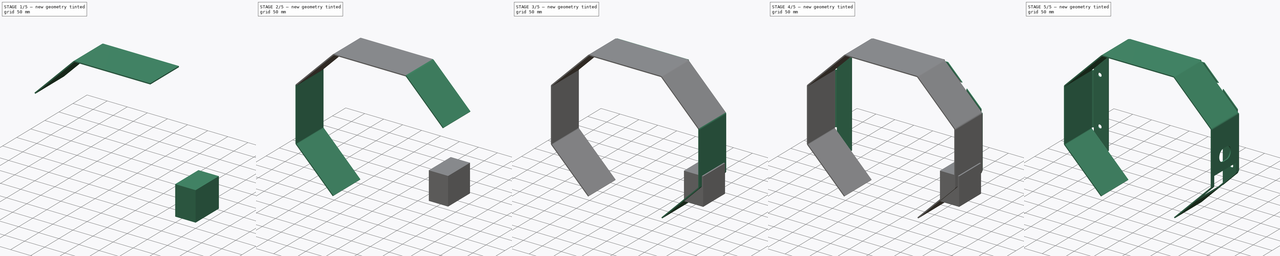
[diagram: build sequence overview — one tinted view per stage of 5, left to right]
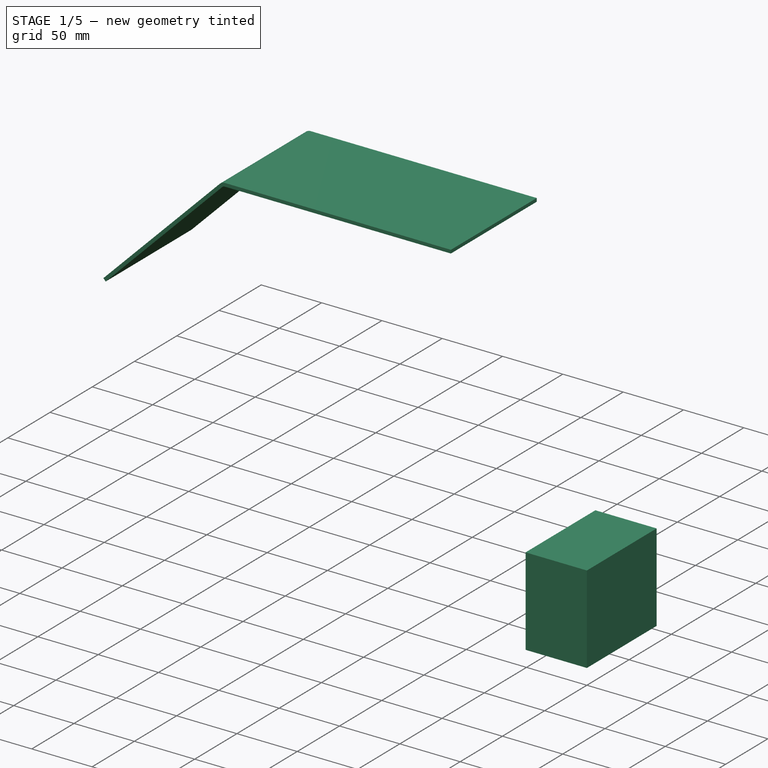
[diagram: stage 1 of 5 — iso view after this stage's code; geometry added in this stage tinted green]
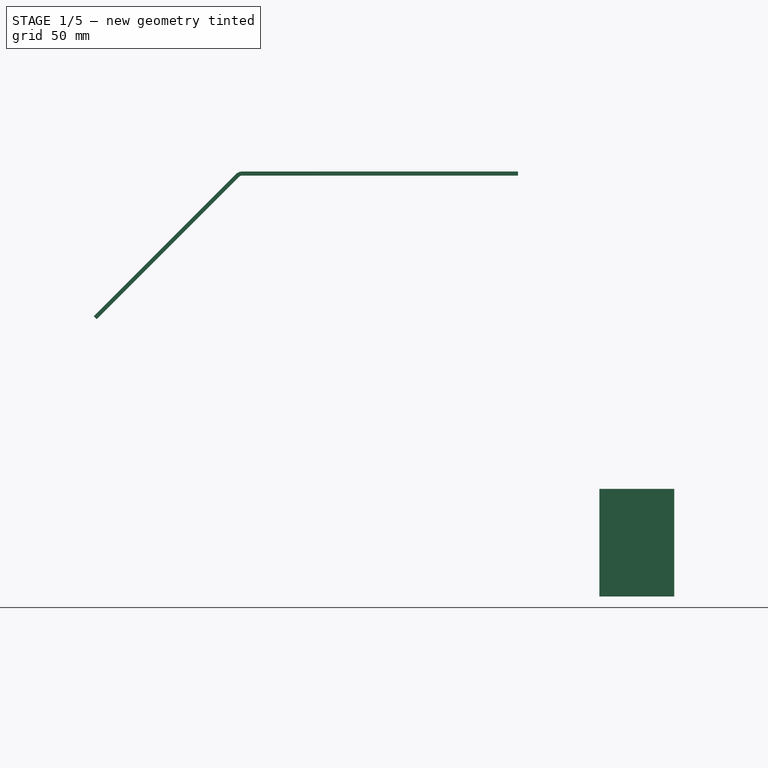
[diagram: stage 1 of 5 — front view after this stage's code; geometry added in this stage tinted green]
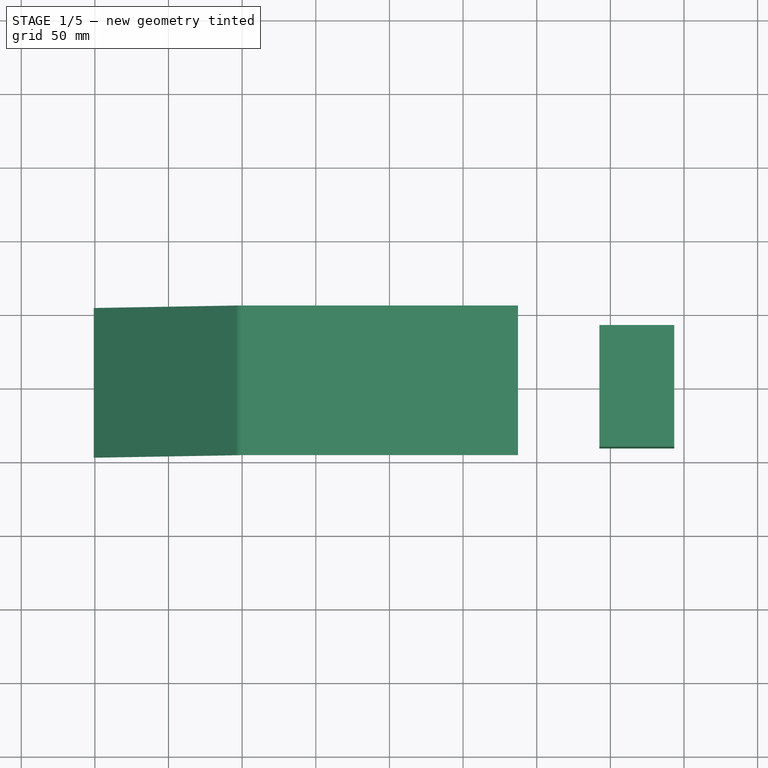
[diagram: stage 1 of 5 — top view after this stage's code; geometry added in this stage tinted green]
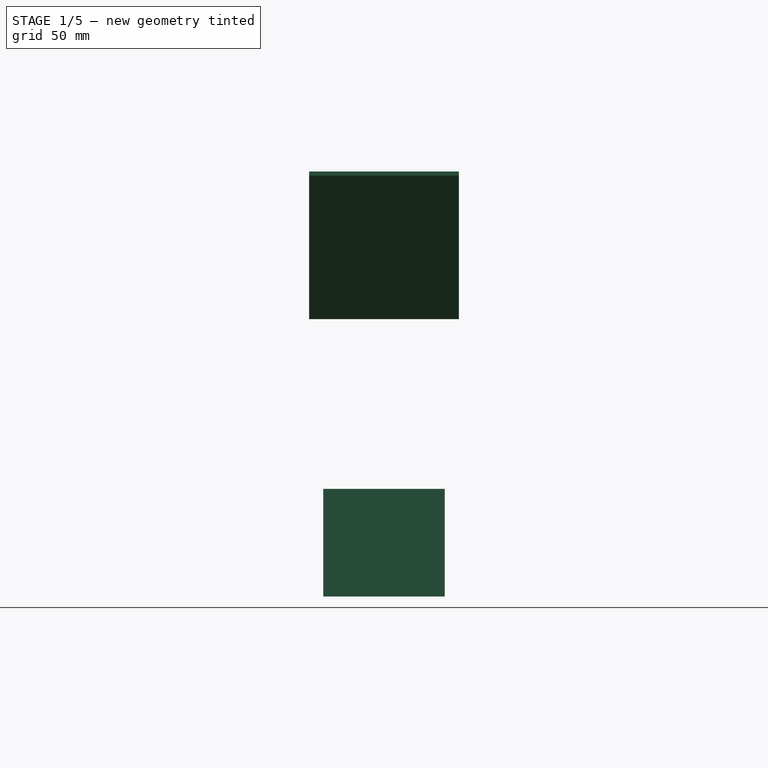
[diagram: stage 1 of 5 — right view after this stage's code; geometry added in this stage tinted green]
FCSTD DOCUMENT  (FreeCAD 0.16R6703 (Git))
Label: AA-JRDx1
License: All rights reserved
LicenseURL: http://en.wikipedia.org/wiki/All_rights_reserved
objects: Part::FeaturePython×9, Sketcher::SketchObject×6, PartDesign::Pad×2, PartDesign::Pocket×2, Part::Box×1, Part::Cut×1
note: 25 computed .brp shape members not serialized (recipe doc carries the construction recipe); baked Part::Feature solids carry a one-line shape summary decoded from their .brp

FEATURE [Sketcher::SketchObject] Sketch
  Placement = pos=(0,0,0) rot=(1,0,0;1.5708rad)
  sketch-geometry (22):
    g0: LineSegment StartX=0 StartY=0 StartZ=0 EndX=-66.4615 EndY=68.4119 EndZ=0
    g1: LineSegment StartX=-66.4615 StartY=68.4119 StartZ=0 EndX=-66.4615 EndY=199.964 EndZ=0
    g2: LineSegment StartX=-66.4615 StartY=199.964 StartZ=0 EndX=7.19213 EndY=269.62 EndZ=0
    g3: LineSegment StartX=7.19213 StartY=269.62 StartZ=0 EndX=182.54 EndY=269.62 EndZ=0
    g4: LineSegment StartX=182.54 StartY=269.62 StartZ=0 EndX=275.442 EndY=199.964 EndZ=0
    g5: LineSegment StartX=275.442 StartY=199.964 StartZ=0 EndX=275.442 EndY=68.4125 EndZ=0
    g6: LineSegment StartX=275.442 StartY=68.4125 StartZ=0 EndX=187.332 EndY=0 EndZ=0
    g7: LineSegment StartX=187.332 StartY=0 StartZ=0 EndX=185.65 EndY=2.21148 EndZ=0
    g8: LineSegment StartX=185.65 StartY=2.21148 StartZ=0 EndX=272.663 EndY=68.4125 EndZ=0
    g9: LineSegment StartX=272.663 StartY=68.4125 StartZ=0 EndX=272.663 EndY=199.964 EndZ=0
    g10: LineSegment StartX=272.663 StartY=199.964 StartZ=0 EndX=182.54 EndY=266.841 EndZ=0
    g11: LineSegment StartX=182.54 StartY=266.841 StartZ=0 EndX=7.19213 EndY=266.841 EndZ=0
    g12: LineSegment StartX=7.19213 StartY=266.841 StartZ=0 EndX=-63.6828 EndY=199.964 EndZ=0
    g13: LineSegment StartX=-63.6828 StartY=199.964 StartZ=0 EndX=-63.6828 EndY=68.4119 EndZ=0
    g14: LineSegment StartX=-63.6828 StartY=68.4119 StartZ=0 EndX=1.97673 EndY=1.95295 EndZ=0
    g15: LineSegment StartX=1.97673 StartY=1.95295 StartZ=0 EndX=0 EndY=0 EndZ=0
    g16: LineSegment [constr] StartX=-66.4615 StartY=68.4119 StartZ=0 EndX=-63.6828 EndY=68.4119 EndZ=0
    g17: LineSegment [constr] StartX=-66.4615 StartY=199.964 StartZ=0 EndX=-63.6828 EndY=199.964 EndZ=0
    g18: LineSegment [constr] StartX=7.19213 StartY=269.62 StartZ=0 EndX=7.19213 EndY=266.841 EndZ=0
    g19: LineSegment [constr] StartX=182.54 StartY=269.62 StartZ=0 EndX=182.54 EndY=266.841 EndZ=0
    g20: LineSegment [constr] StartX=275.442 StartY=199.964 StartZ=0 EndX=272.663 EndY=199.964 EndZ=0
    g21: LineSegment [constr] StartX=275.442 StartY=68.4125 StartZ=0 EndX=272.663 EndY=68.4125 EndZ=0
  constraints (51):
    c: Coincident(g-1,g0)
    c: Coincident(g0,g1)
    c: Vertical(g1)
    c: Coincident(g1,g2)
    c: Coincident(g2,g3)
    c: Horizontal(g3)
    c: Coincident(g3,g4)
    c: PointOnObject(g6,g-1)
    c: Coincident(g6,g7)
    c: Coincident(g7,g8)
    c: Coincident(g8,g9)
    c: Vertical(g9)
    c: Coincident(g9,g10)
    c: Coincident(g10,g11)
    c: Horizontal(g11)
    c: Coincident(g11,g12)
    c: Coincident(g12,g13)
    c: Vertical(g13)
    c: Coincident(g13,g14)
    c: Coincident(g14,g15)
    c: Coincident(g15,g0)
    c: Vertical(g5)
    c: Perpendicular(g15,g14)
    c: Perpendicular(g8,g7)
    c: Distance(g15) = 2.77876
    c: Coincident(g16,g0)
    c: Coincident(g16,g13)
    c: Horizontal(g16)
    c: Coincident(g17,g1)
    c: Coincident(g17,g12)
    c: Horizontal(g17)
    c: Coincident(g18,g2)
    c: Coincident(g18,g11)
    c: Vertical(g18)
    c: Coincident(g19,g3)
    c: Coincident(g19,g10)
    c: Vertical(g19)
    c: Coincident(g20,g4)
    c: Coincident(g20,g9)
    c: Horizontal(g20)
    c: Coincident(g21,g5)
    c: Coincident(g21,g8)
    c: Horizontal(g21)
    c: Coincident(g6,g5)
    c: Equal(g7,g21)
    c: Equal(g21,g20)
    c: Equal(g20,g19)
    c: Equal(g19,g18)
    c: Equal(g18,g17)
    c: Equal(g17,g16)
    c: Equal(g16,g15)
FEATURE [Sketcher::SketchObject] Sketch001
  sketch-geometry (4):
    g0: LineSegment StartX=0 StartY=0 StartZ=0 EndX=187.325 EndY=0 EndZ=0
    g1: LineSegment StartX=187.325 StartY=0 StartZ=0 EndX=187.325 EndY=101.6 EndZ=0
    g2: LineSegment StartX=187.325 StartY=101.6 StartZ=0 EndX=0 EndY=101.6 EndZ=0
    g3: LineSegment StartX=0 StartY=101.6 StartZ=0 EndX=0 EndY=0 EndZ=0
  constraints (11):
    c: Coincident(g-1,g0)
    c: Horizontal(g0)
    c: Coincident(g0,g1)
    c: Vertical(g1)
    c: Coincident(g1,g2)
    c: Horizontal(g2)
    c: Coincident(g2,g3)
    c: Coincident(g3,g0)
    c: Vertical(g3)
    c: DistanceY(g1,g1) = 101.6
    c: DistanceX(g2,g2) = 187.325
FEATURE [PartDesign::Pad] Pad
  Length = 2.77876
  Length2 = 100
  Sketch = -> Sketch001
  Type = 0
FEATURE [Part::FeaturePython] Bend  # WARN: FeaturePython — macro-defined, semantics opaque (R4)
  angle = 45
  baseObject = -> Pad [Face4]
  gap1 = 0
  gap2 = 0
  invert = true
  length = 136.525
  radius = 3.175
  reliefd = 1
  reliefw = 0.5
FEATURE [Part::Box] Box  label="Cube"
  Height = 73.025
  Length = 50.8
  Placement = pos=(242.57,9.525,-285.75) rot=(0,0,1;0rad)
  Width = 82.55
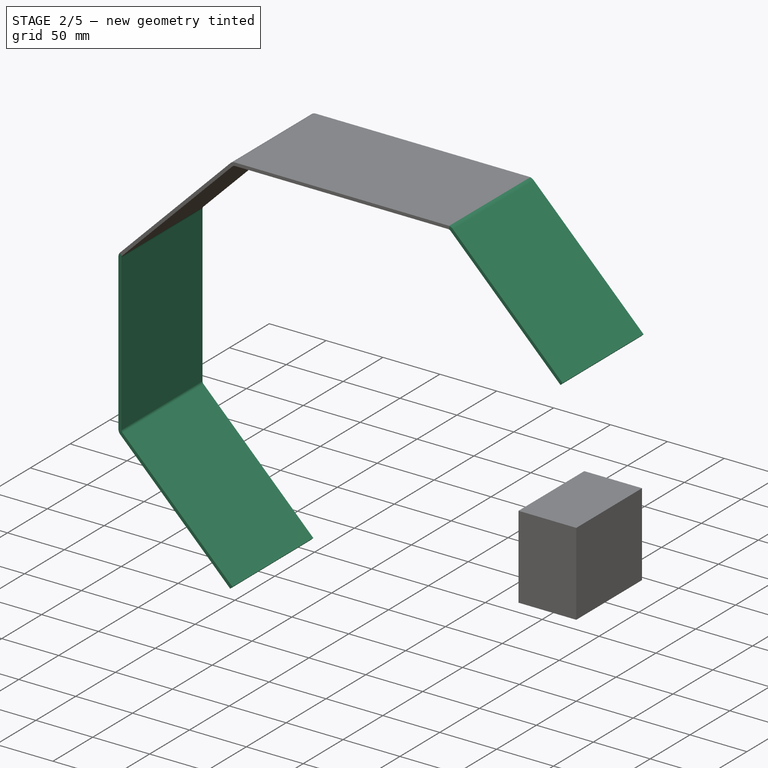
[diagram: stage 2 of 5 — iso view after this stage's code; geometry added in this stage tinted green]
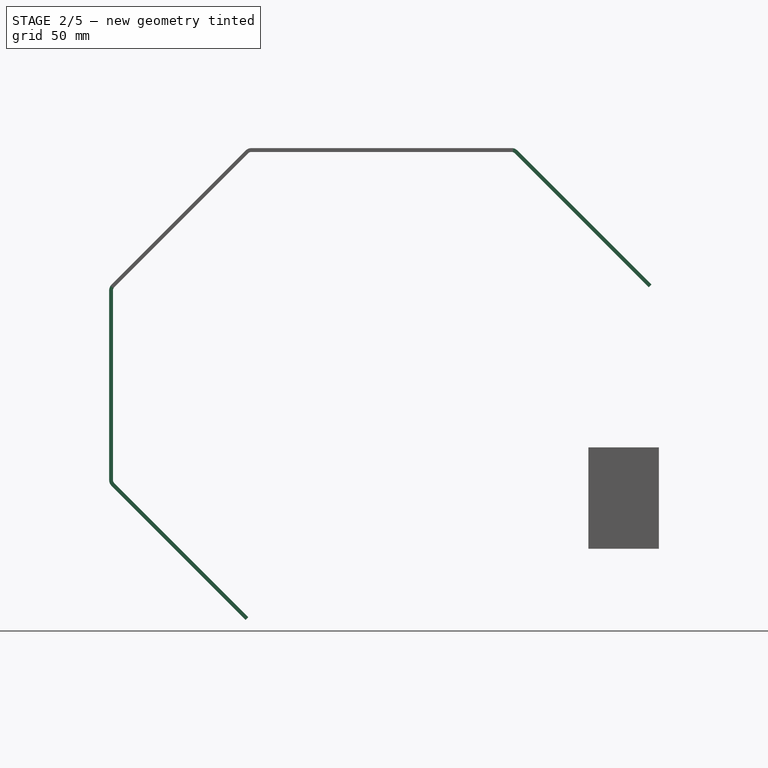
[diagram: stage 2 of 5 — front view after this stage's code; geometry added in this stage tinted green]
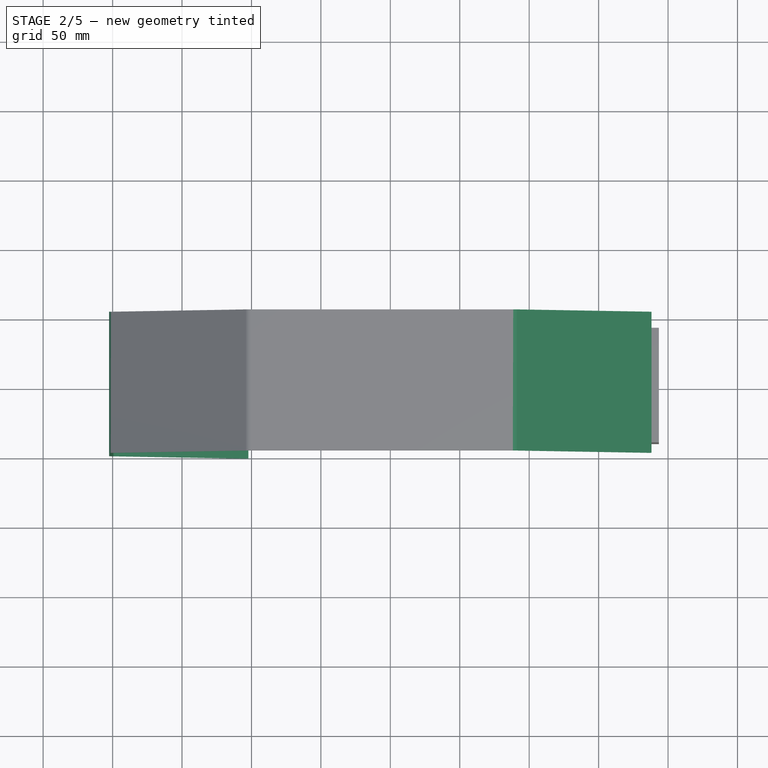
[diagram: stage 2 of 5 — top view after this stage's code; geometry added in this stage tinted green]
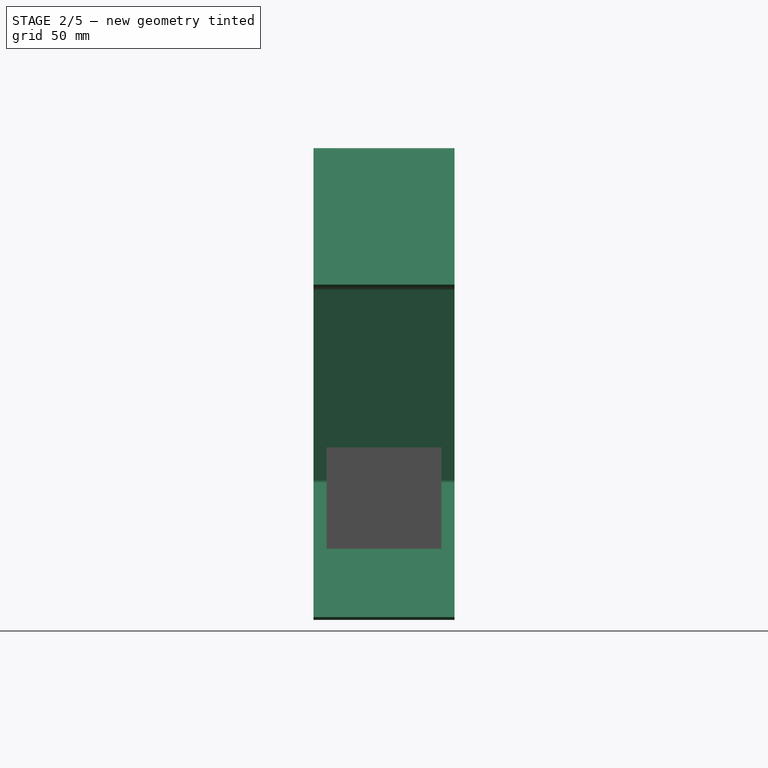
[diagram: stage 2 of 5 — right view after this stage's code; geometry added in this stage tinted green]
FEATURE [Part::FeaturePython] Bend001  # WARN: FeaturePython — macro-defined, semantics opaque (R4)
  angle = 45
  baseObject = -> Bend [Face1]
  gap1 = 0
  gap2 = 0
  invert = true
  length = 136.525
  radius = 3.175
  reliefd = 1
  reliefw = 0.5
FEATURE [Part::FeaturePython] Bend002  # WARN: FeaturePython — macro-defined, semantics opaque (R4)
  angle = 45
  baseObject = -> Bend001 [Face1]
  gap1 = 0
  gap2 = 0
  invert = true
  length = 136.525
  radius = 3.175
  reliefd = 1
  reliefw = 0.5
FEATURE [Part::FeaturePython] Bend003  # WARN: FeaturePython — macro-defined, semantics opaque (R4)
  angle = 45
  baseObject = -> Bend002 [Face30]
  gap1 = 0
  gap2 = 0
  invert = true
  length = 136.525
  radius = 3.175
  reliefd = 1
  reliefw = 0.5
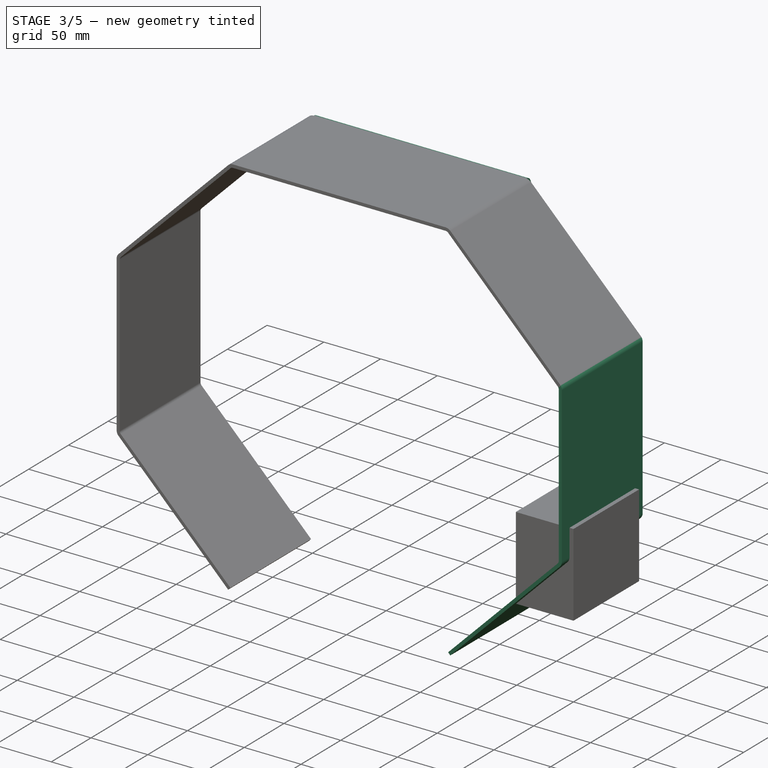
[diagram: stage 3 of 5 — iso view after this stage's code; geometry added in this stage tinted green]
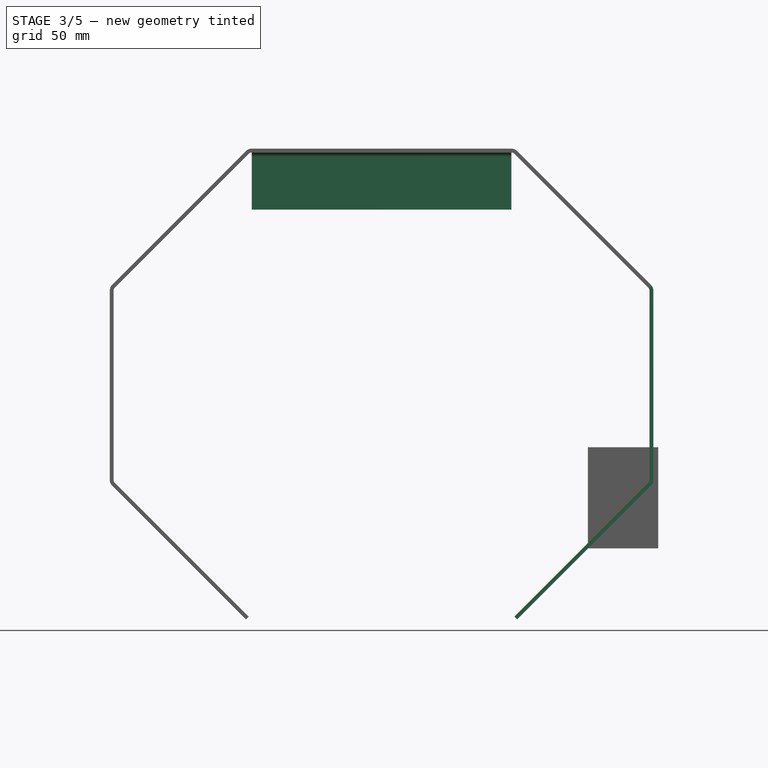
[diagram: stage 3 of 5 — front view after this stage's code; geometry added in this stage tinted green]
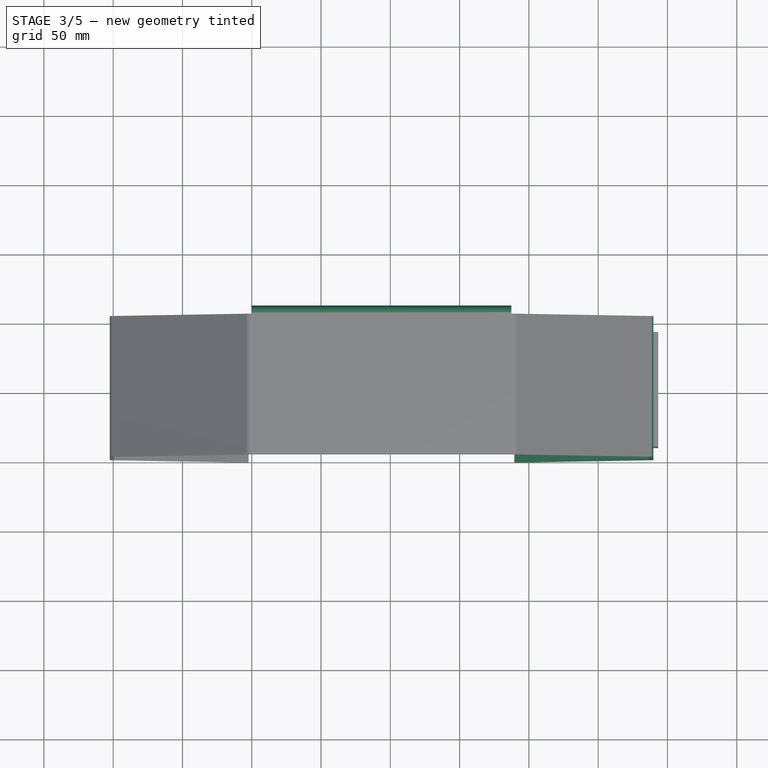
[diagram: stage 3 of 5 — top view after this stage's code; geometry added in this stage tinted green]
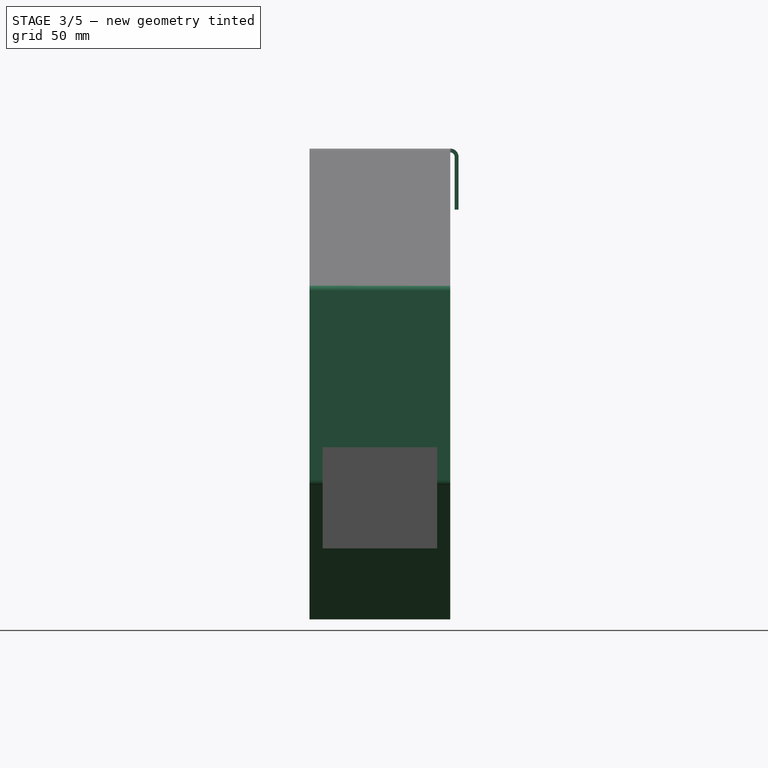
[diagram: stage 3 of 5 — right view after this stage's code; geometry added in this stage tinted green]
FEATURE [Part::FeaturePython] Bend004  # WARN: FeaturePython — macro-defined, semantics opaque (R4)
  angle = 45
  baseObject = -> Bend003 [Face1]
  gap1 = 0
  gap2 = 0
  invert = true
  length = 136.525
  radius = 3.175
  reliefd = 1
  reliefw = 0.5
FEATURE [Part::FeaturePython] Bend005  # WARN: FeaturePython — macro-defined, semantics opaque (R4)
  angle = 45
  baseObject = -> Bend004 [Face1]
  gap1 = 0
  gap2 = 0
  invert = true
  length = 136.525
  radius = 3.175
  reliefd = 1
  reliefw = 0.5
FEATURE [Part::FeaturePython] Bend006  # WARN: FeaturePython — macro-defined, semantics opaque (R4)
  angle = 90
  baseObject = -> Bend005 [Face27]
  gap1 = 0
  gap2 = 0
  invert = true
  length = 38.1
  radius = 3.175
  reliefd = 1
  reliefw = 0.5
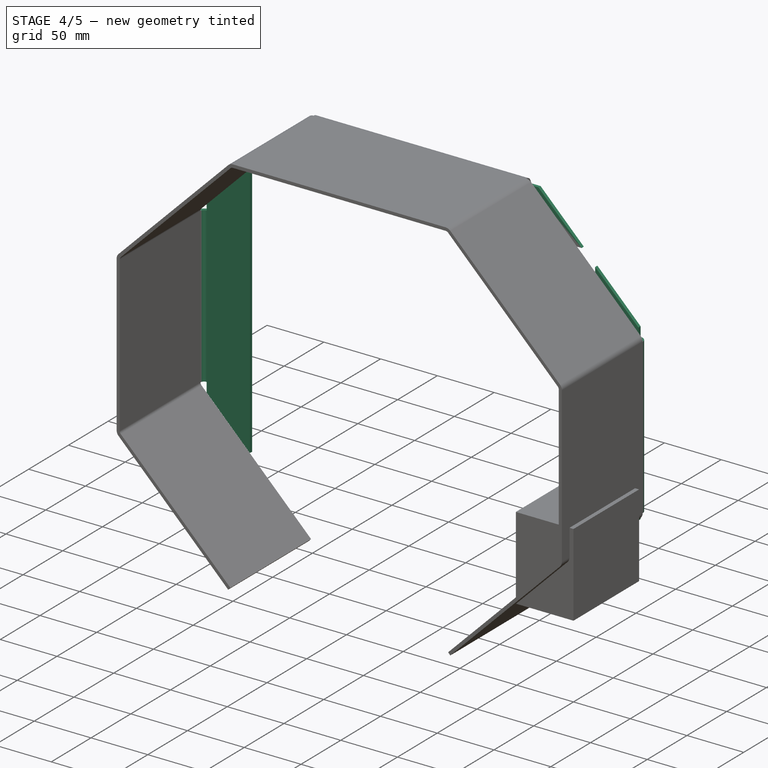
[diagram: stage 4 of 5 — iso view after this stage's code; geometry added in this stage tinted green]
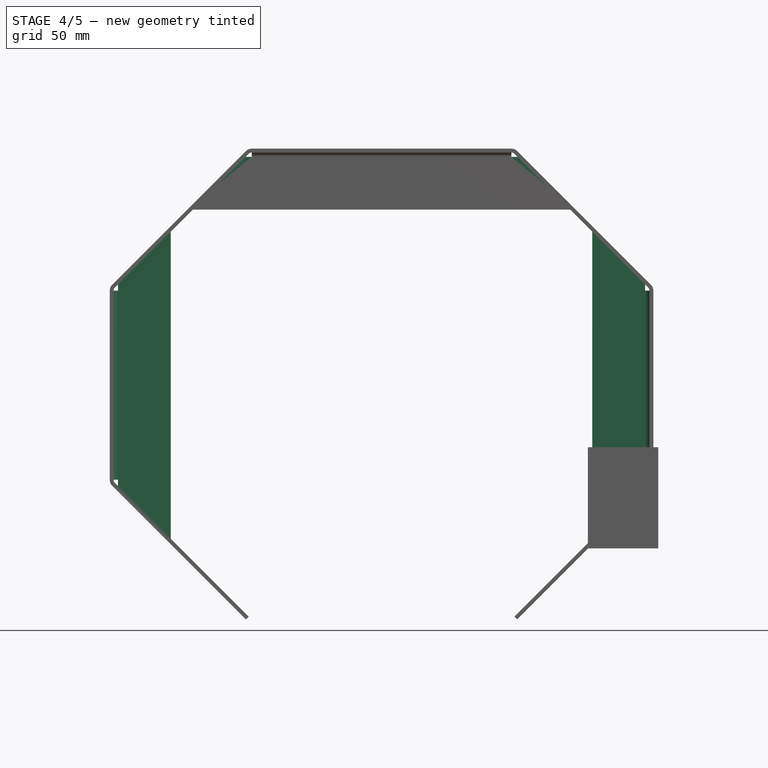
[diagram: stage 4 of 5 — front view after this stage's code; geometry added in this stage tinted green]
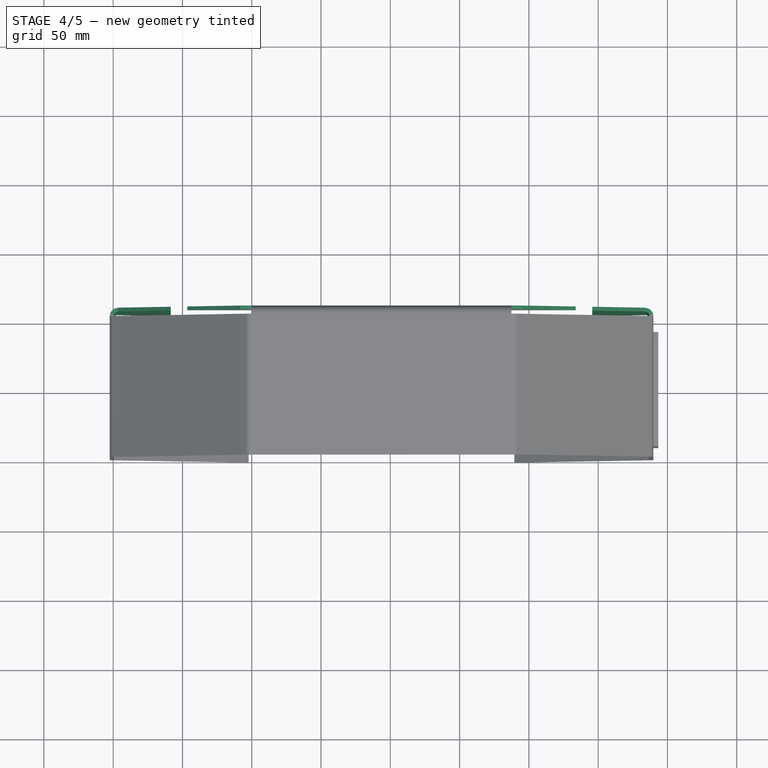
[diagram: stage 4 of 5 — top view after this stage's code; geometry added in this stage tinted green]
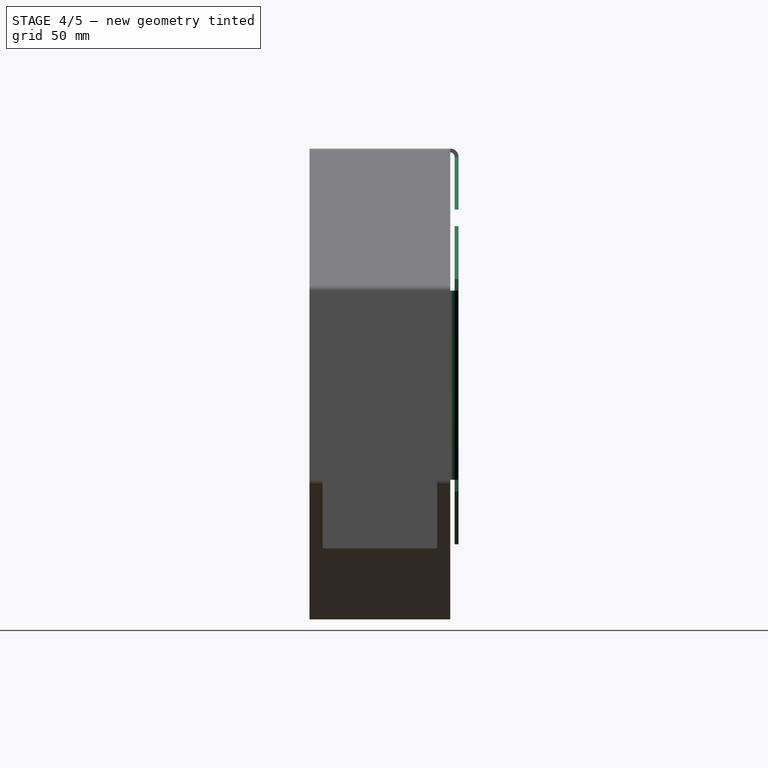
[diagram: stage 4 of 5 — right view after this stage's code; geometry added in this stage tinted green]
FEATURE [Part::FeaturePython] Bend007  # WARN: FeaturePython — macro-defined, semantics opaque (R4)
  angle = 90
  baseObject = -> Bend006 [Face31]
  gap1 = 0
  gap2 = 0
  invert = true
  length = 38.1
  radius = 3.175
  reliefd = 1
  reliefw = 0.5
FEATURE [Part::FeaturePython] Bend008  # WARN: FeaturePython — macro-defined, semantics opaque (R4)
  angle = 90
  baseObject = -> Bend007 [Face61]
  gap1 = 0
  gap2 = 0
  invert = true
  length = 38.1
  radius = 3.175
  reliefd = 1
  reliefw = 0.5
FEATURE [Sketcher::SketchObject] Sketch002
  ExternalGeometry = -> [Bend008]
  Placement = pos=(0,107.554,0) rot=(0,0.707107,0.707107;3.14159rad)
  Support = -> Bend008 [Face45]
  sketch-geometry (24):
    g0: LineSegment StartX=-187.325 StartY=-3.175 StartZ=0 EndX=-195.745 EndY=-3.175 EndZ=0
    g1: LineSegment StartX=-195.745 StartY=-3.175 StartZ=0 EndX=-233.845 EndY=-41.275 EndZ=0
    g2: LineSegment StartX=-233.845 StartY=-41.275 StartZ=0 EndX=-187.325 EndY=-41.275 EndZ=0
    g3: LineSegment StartX=-187.325 StartY=-41.275 StartZ=0 EndX=-187.325 EndY=-3.175 EndZ=0
    g4: LineSegment StartX=0 StartY=-3.175 StartZ=0 EndX=8.41989 EndY=-3.175 EndZ=0
    g5: LineSegment StartX=8.41989 StartY=-3.175 StartZ=0 EndX=46.5199 EndY=-41.275 EndZ=0
    g6: LineSegment StartX=46.5199 StartY=-41.275 StartZ=0 EndX=0 EndY=-41.275 EndZ=0
    g7: LineSegment StartX=0 StartY=-41.275 StartZ=0 EndX=0 EndY=-3.175 EndZ=0
    g8: LineSegment StartX=58.4378 StartY=-99.7128 StartZ=0 EndX=58.4378 EndY=-53.1929 EndZ=0
    g9: LineSegment StartX=58.4378 StartY=-53.1929 StartZ=0 EndX=96.5378 EndY=-91.2929 EndZ=0
    g10: LineSegment StartX=96.5378 StartY=-91.2929 StartZ=0 EndX=96.5378 EndY=-99.7128 EndZ=0
    g11: LineSegment StartX=96.5378 StartY=-99.7128 StartZ=0 EndX=58.4378 EndY=-99.7128 EndZ=0
    g12: LineSegment StartX=96.5378 StartY=-236.238 StartZ=0 EndX=96.5378 EndY=-244.658 EndZ=0
    g13: LineSegment StartX=96.5378 StartY=-244.658 StartZ=0 EndX=58.4378 EndY=-282.758 EndZ=0
    g14: LineSegment StartX=58.4378 StartY=-282.758 StartZ=0 EndX=58.4378 EndY=-236.238 EndZ=0
    g15: LineSegment StartX=58.4378 StartY=-236.238 StartZ=0 EndX=96.5378 EndY=-236.238 EndZ=0
    g16: LineSegment StartX=-283.863 StartY=-236.238 StartZ=0 EndX=-283.863 EndY=-244.658 EndZ=0
    g17: LineSegment StartX=-283.863 StartY=-244.658 StartZ=0 EndX=-245.763 EndY=-282.758 EndZ=0
    g18: LineSegment StartX=-245.763 StartY=-282.758 StartZ=0 EndX=-245.763 EndY=-236.238 EndZ=0
    g19: LineSegment StartX=-245.763 StartY=-236.238 StartZ=0 EndX=-283.863 EndY=-236.238 EndZ=0
    g20: LineSegment StartX=-283.863 StartY=-99.7128 StartZ=0 EndX=-283.863 EndY=-91.2929 EndZ=0
    g21: LineSegment StartX=-283.863 StartY=-91.2929 StartZ=0 EndX=-245.763 EndY=-53.1929 EndZ=0
    g22: LineSegment StartX=-245.763 StartY=-53.1929 StartZ=0 EndX=-245.763 EndY=-99.7128 EndZ=0
    g23: LineSegment StartX=-245.763 StartY=-99.7128 StartZ=0 EndX=-283.863 EndY=-99.7128 EndZ=0
  constraints (64):
    c: Coincident(g0,g1)
    c: Coincident(g1,g2)
    c: Horizontal(g2)
    c: Coincident(g2,g3)
    c: Coincident(g3,g0)
    c: Vertical(g3)
    c: Horizontal(g0)
    c: Horizontal(g4)
    c: Coincident(g4,g5)
    c: Coincident(g5,g6)
    c: Horizontal(g6)
    c: Coincident(g6,g7)
    c: Coincident(g4,g7)
    c: Coincident(g4,g-5)
    c: PointOnObject(g4,g-6)
    c: PointOnObject(g5,g-6)
    c: Coincident(g6,g-5)
    c: Coincident(g-4,g0)
    c: PointOnObject(g0,g-3)
    c: Coincident(g2,g-4)
    c: PointOnObject(g1,g-3)
    c: Vertical(g8)
    c: Coincident(g8,g9)
    c: Coincident(g9,g10)
    c: Coincident(g10,g11)
    c: Coincident(g11,g8)
    c: Horizontal(g11)
    c: Vertical(g12)
    c: Coincident(g12,g13)
    c: Coincident(g13,g14)
    c: Vertical(g14)
    c: Coincident(g14,g15)
    c: Coincident(g15,g12)
    c: Horizontal(g15)
    c: Vertical(g16)
    c: Coincident(g16,g17)
    c: Coincident(g17,g18)
    c: Vertical(g18)
    c: Coincident(g18,g19)
    c: Coincident(g19,g16)
    c: Vertical(g20)
    c: Coincident(g20,g21)
    c: Coincident(g21,g22)
    c: Coincident(g22,g23)
    c: Coincident(g23,g20)
    c: Horizontal(g23)
    c: Coincident(g20,g-7)
    c: Coincident(g22,g-7)
    c: PointOnObject(g21,g-3)
    c: Vertical(g22)
    c: PointOnObject(g20,g-3)
    c: Coincident(g8,g-10)
    c: Coincident(g10,g-10)
    c: PointOnObject(g9,g-6)
    c: Vertical(g10)
    c: PointOnObject(g8,g-6)
    c: Coincident(g14,g-11)
    c: Coincident(g12,g-11)
    c: PointOnObject(g12,g-12)
    c: PointOnObject(g13,g-12)
    c: Coincident(g18,g-8)
    c: Coincident(g16,g-8)
    c: PointOnObject(g16,g-9)
    c: PointOnObject(g17,g-9)
FEATURE [PartDesign::Pad] Pad001
  Length = 2.77876
  Length2 = 100
  Reversed = true
  Sketch = -> Sketch002
  Type = 0
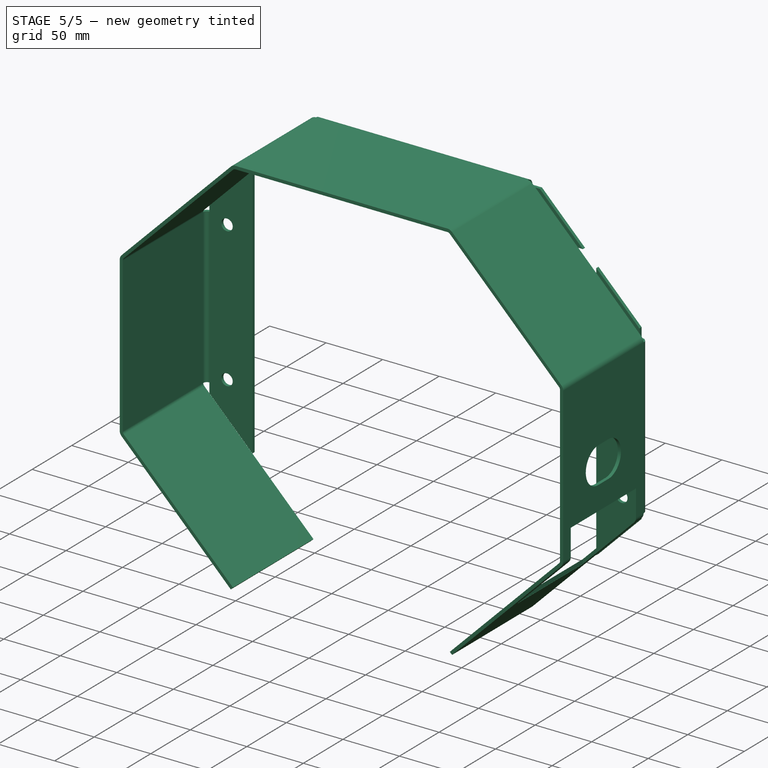
[diagram: stage 5 of 5 — iso view after this stage's code; geometry added in this stage tinted green]
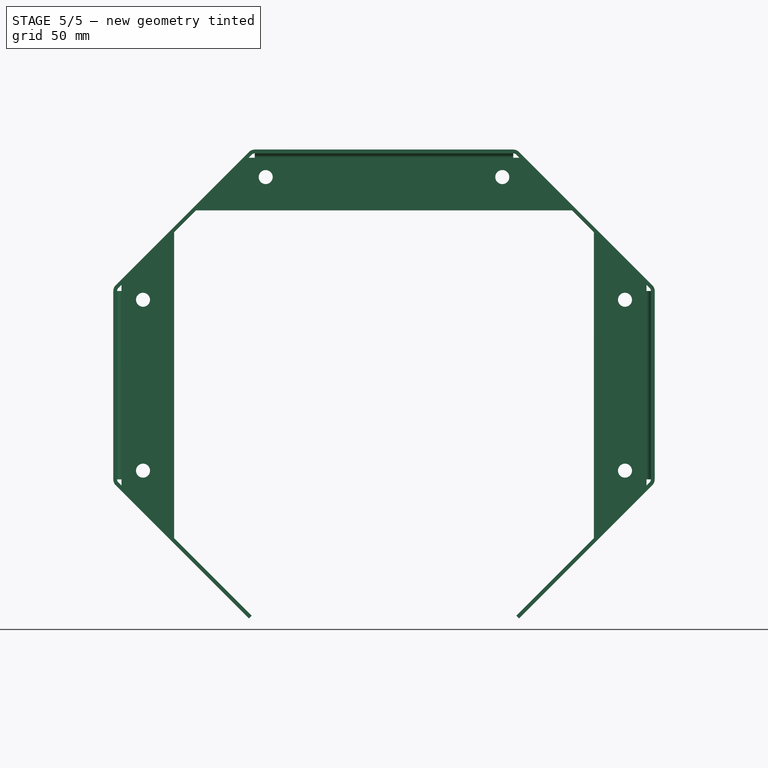
[diagram: stage 5 of 5 — front view after this stage's code; geometry added in this stage tinted green]
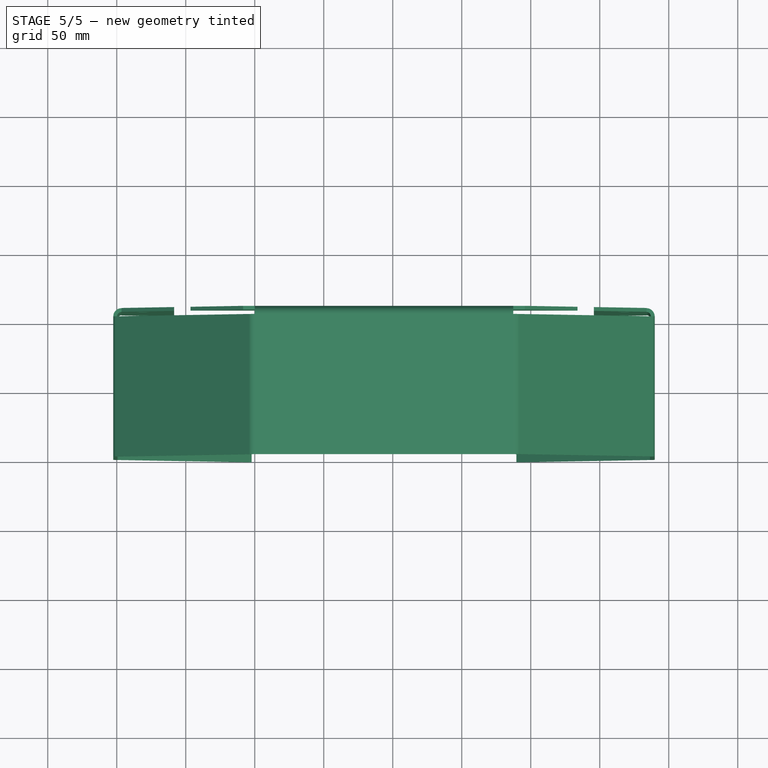
[diagram: stage 5 of 5 — top view after this stage's code; geometry added in this stage tinted green]
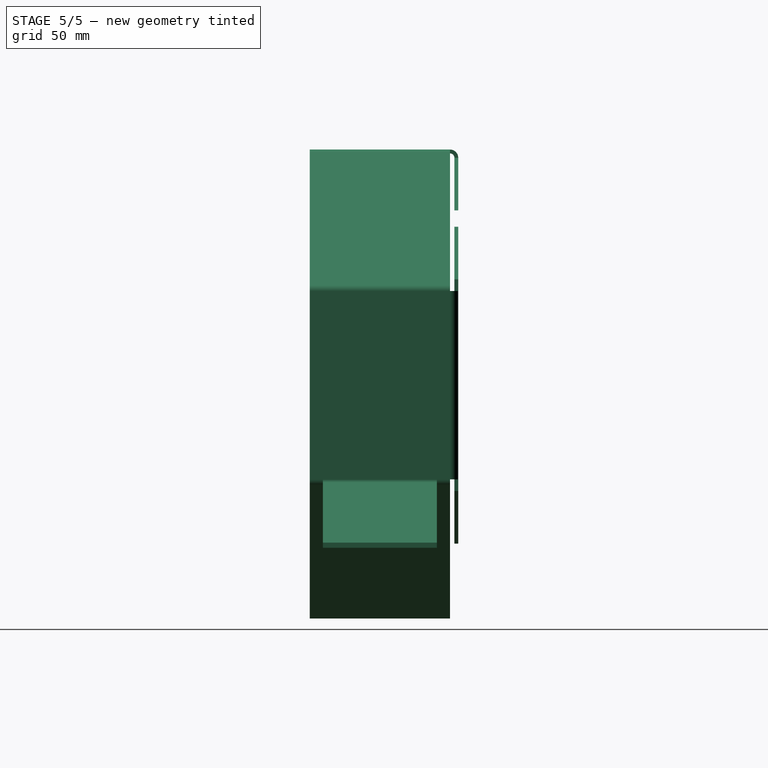
[diagram: stage 5 of 5 — right view after this stage's code; geometry added in this stage tinted green]
FEATURE [Sketcher::SketchObject] Sketch003
  ExternalGeometry = -> [Pad001]
  Placement = pos=(289.817,0,0) rot=(0.57735,0.57735,0.57735;2.0944rad)
  Support = -> Pad001 [Face42]
  sketch-geometry (11):
    g0: LineSegment [constr] StartX=101.6 StartY=-236.238 StartZ=0 EndX=101.6 EndY=-160.038 EndZ=0
    g1: LineSegment [constr] StartX=101.6 StartY=-160.038 StartZ=0 EndX=57.15 EndY=-160.038 EndZ=0
    g2: LineSegment [constr] StartX=57.15 StartY=-160.038 StartZ=0 EndX=44.45 EndY=-160.038 EndZ=0
    g3: LineSegment [constr] StartX=44.45 StartY=-160.038 StartZ=0 EndX=44.45 EndY=-175.913 EndZ=0
    g4: LineSegment [constr] StartX=57.15 StartY=-160.038 StartZ=0 EndX=57.15 EndY=-175.913 EndZ=0
    g5: LineSegment [constr] StartX=44.45 StartY=-175.913 StartZ=0 EndX=44.45 EndY=-191.788 EndZ=0
    g6: LineSegment [constr] StartX=57.15 StartY=-175.913 StartZ=0 EndX=57.15 EndY=-191.788 EndZ=0
    g7: ArcOfCircle CenterX=44.45 CenterY=-175.913 CenterZ=0 NormalX=0 NormalY=0 NormalZ=1 Radius=15.875 StartAngle=1.5708 EndAngle=4.71239
    g8: ArcOfCircle CenterX=57.15 CenterY=-175.913 CenterZ=0 NormalX=0 NormalY=0 NormalZ=1 Radius=15.875 StartAngle=4.71239 EndAngle=7.85398
    g9: LineSegment StartX=44.45 StartY=-160.038 StartZ=0 EndX=57.15 EndY=-160.038 EndZ=0
    g10: LineSegment StartX=44.45 StartY=-191.788 StartZ=0 EndX=57.15 EndY=-191.788 EndZ=0
  constraints (33):
    c: PointOnObject(g0,g-4)
    c: Vertical(g0)
    c: DistanceY(g0,g0) = 76.2
    c: PointOnObject(g0,g-3)
    c: Coincident(g1,g0)
    c: Horizontal(g1)
    c: DistanceX(g1,g1) = 44.45
    c: Coincident(g2,g1)
    c: Horizontal(g2)
    c: DistanceX(g2,g2) = 12.7
    c: Coincident(g3,g2)
    c: Vertical(g3)
    c: Coincident(g4,g1)
    c: Vertical(g4)
    c: DistanceY(g3,g3) = 15.875
    c: Equal(g4,g3)
    c: Coincident(g5,g3)
    c: Vertical(g5)
    c: Equal(g5,g3)
    c: Coincident(g6,g4)
    c: Vertical(g6)
    c: Equal(g5,g6)
    c: Coincident(g7,g3)
    c: Coincident(g7,g2)
    c: Coincident(g7,g5)
    c: Coincident(g8,g4)
    c: Coincident(g8,g1)
    c: Coincident(g8,g6)
    c: Coincident(g9,g2)
    c: Coincident(g9,g1)
    c: Coincident(g10,g5)
    c: Coincident(g10,g6)
    c: Horizontal(g10)
FEATURE [PartDesign::Pocket] Pocket
  Length = 4.99999
  Sketch = -> Sketch003
  Type = 2
FEATURE [Sketcher::SketchObject] Sketch004
  Placement = pos=(0,-50.8,0) rot=(-1,0,0;4.71239rad)
FEATURE [Part::Cut] Cut
  Base = -> Pocket
  Tool = -> Box
FEATURE [Sketcher::SketchObject] Sketch005
  ExternalGeometry = -> [Cut]
  Placement = pos=(0,104.775,0) rot=(1,0,0;1.5708rad)
  Support = -> Cut [Face7]
  sketch-geometry (22):
    g0: LineSegment [constr] StartX=-80.9625 StartY=-106.063 StartZ=0 EndX=268.288 EndY=-106.063 EndZ=0
    g1: LineSegment [constr] StartX=268.288 StartY=-106.063 StartZ=0 EndX=268.288 EndY=-229.888 EndZ=0
    g2: LineSegment [constr] StartX=268.288 StartY=-229.888 StartZ=0 EndX=-80.9625 EndY=-229.888 EndZ=0
    g3: LineSegment [constr] StartX=-80.9625 StartY=-229.888 StartZ=0 EndX=-80.9625 EndY=-106.063 EndZ=0
    g4: LineSegment [constr] StartX=-98.7828 StartY=-97.4677 StartZ=0 EndX=-98.7828 EndY=-106.063 EndZ=0
    g5: LineSegment [constr] StartX=-98.7828 StartY=-106.063 StartZ=0 EndX=-80.9625 EndY=-106.063 EndZ=0
    g6: LineSegment [constr] StartX=-98.7828 StartY=-238.483 StartZ=0 EndX=-98.7828 EndY=-229.888 EndZ=0
    g7: LineSegment [constr] StartX=-98.7828 StartY=-229.888 StartZ=0 EndX=-80.9625 EndY=-229.888 EndZ=0
    g8: LineSegment [constr] StartX=286.108 StartY=-238.483 StartZ=0 EndX=286.108 EndY=-229.888 EndZ=0
    g9: LineSegment [constr] StartX=268.288 StartY=-229.888 StartZ=0 EndX=286.108 EndY=-229.888 EndZ=0
    g10: LineSegment [constr] StartX=268.288 StartY=-106.063 StartZ=0 EndX=286.108 EndY=-106.063 EndZ=0
    g11: LineSegment [constr] StartX=286.108 StartY=-97.4677 StartZ=0 EndX=286.108 EndY=-106.063 EndZ=0
    g12: LineSegment [constr] StartX=-80.9625 StartY=-106.063 StartZ=0 EndX=-80.9625 EndY=-17.1628 EndZ=0
    g13: LineSegment [constr] StartX=-80.9625 StartY=-17.1628 StartZ=0 EndX=7.9375 EndY=-17.1628 EndZ=0
    g14: LineSegment [constr] StartX=268.288 StartY=-106.063 StartZ=0 EndX=268.288 EndY=-17.1628 EndZ=0
    g15: LineSegment [constr] StartX=268.288 StartY=-17.1628 StartZ=0 EndX=179.387 EndY=-17.1628 EndZ=0
    g16: Circle CenterX=7.9375 CenterY=-17.1628 CenterZ=0 NormalX=0 NormalY=0 NormalZ=1 Radius=5.08
    g17: Circle CenterX=179.387 CenterY=-17.1628 CenterZ=0 NormalX=0 NormalY=0 NormalZ=1 Radius=5.08
    g18: Circle CenterX=-80.9625 CenterY=-229.888 CenterZ=0 NormalX=0 NormalY=0 NormalZ=1 Radius=5.08
    g19: Circle CenterX=-80.9625 CenterY=-106.063 CenterZ=0 NormalX=0 NormalY=0 NormalZ=1 Radius=5.08
    g20: Circle CenterX=268.288 CenterY=-106.063 CenterZ=0 NormalX=0 NormalY=0 NormalZ=1 Radius=5.08
    g21: Circle CenterX=268.288 CenterY=-229.888 CenterZ=0 NormalX=0 NormalY=0 NormalZ=1 Radius=5.08
  constraints (59):
    c: Coincident(g0,g1)
    c: Coincident(g1,g2)
    c: Coincident(g2,g3)
    c: Coincident(g3,g0)
    c: Horizontal(g0)
    c: Horizontal(g2)
    c: Vertical(g1)
    c: Vertical(g3)
    c: DistanceY(g3,g3) = 123.825
    c: DistanceX(g0,g0) = 349.25
    c: Coincident(g4,g-3)
    c: Coincident(g5,g4)
    c: Coincident(g5,g0)
    c: Horizontal(g5)
    c: Vertical(g4)
    c: Coincident(g-4,g6)
    c: Vertical(g6)
    c: Coincident(g6,g7)
    c: Coincident(g7,g2)
    c: Horizontal(g7)
    c: Coincident(g8,g-6)
    c: Vertical(g8)
    c: Coincident(g9,g1)
    c: Horizontal(g9)
    c: Coincident(g10,g0)
    c: Horizontal(g10)
    c: Coincident(g11,g-5)
    c: Coincident(g11,g10)
    c: Vertical(g11)
    c: Equal(g11,g8)
    c: Equal(g8,g6)
    c: Equal(g6,g4)
    c: Equal(g5,g7)
    c: Equal(g7,g9)
    c: Equal(g9,g10)
    c: Coincident(g12,g0)
    c: Vertical(g12)
    c: Horizontal(g13)
    c: Coincident(g12,g13)
    c: Coincident(g14,g0)
    c: Vertical(g14)
    c: Coincident(g15,g14)
    c: Horizontal(g15)
    c: Equal(g15,g14)
    c: Equal(g14,g12)
    c: Equal(g12,g13)
    c: DistanceX(g13,g13) = 88.9
    c: Coincident(g16,g13)
    c: Coincident(g17,g15)
    c: Coincident(g18,g2)
    c: Coincident(g19,g0)
    c: Coincident(g20,g0)
    c: Coincident(g21,g1)
    c: Equal(g20,g17)
    c: Equal(g17,g16)
    c: Equal(g16,g19)
    c: Equal(g19,g18)
    c: Equal(g18,g21)
    c: Radius(g17) = 5.08
FEATURE [PartDesign::Pocket] Pocket001
  Length = 0
  Sketch = -> Sketch005
  Type = 1
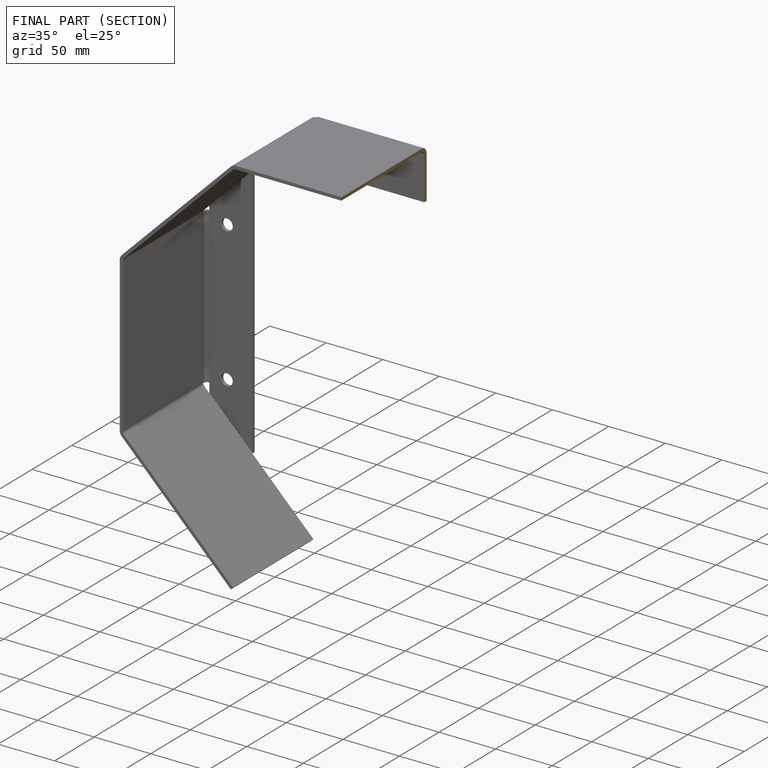
[diagram: finished part — half-section view (interior)]
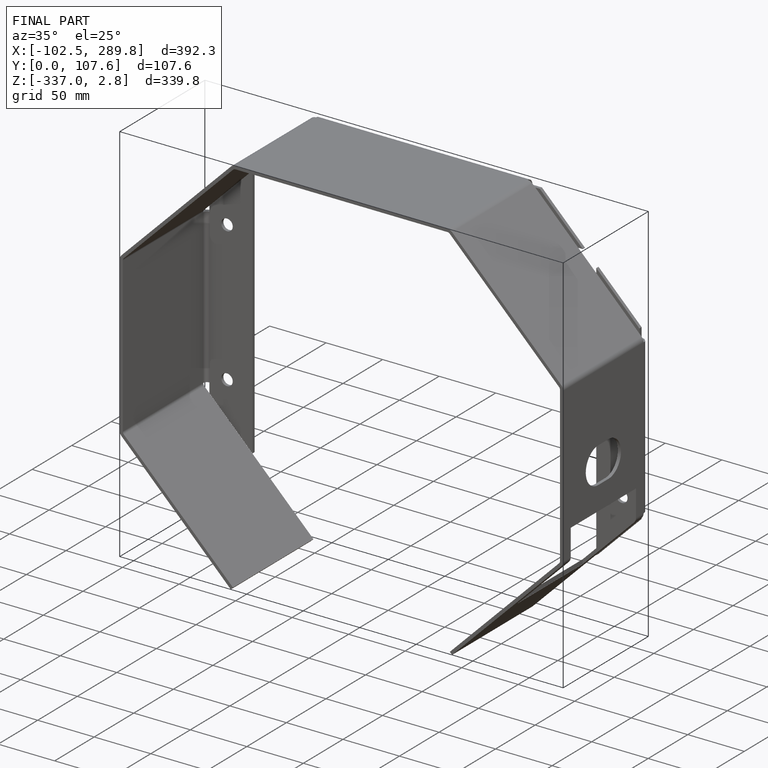
[diagram: finished part — iso view with bounding-box wireframe]
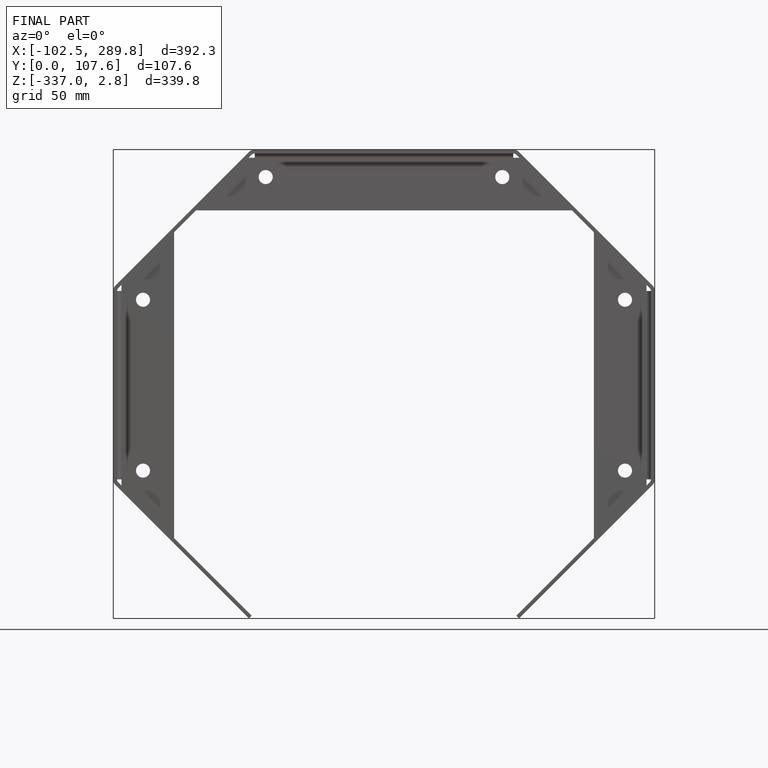
[diagram: finished part — front view with bounding-box wireframe]
